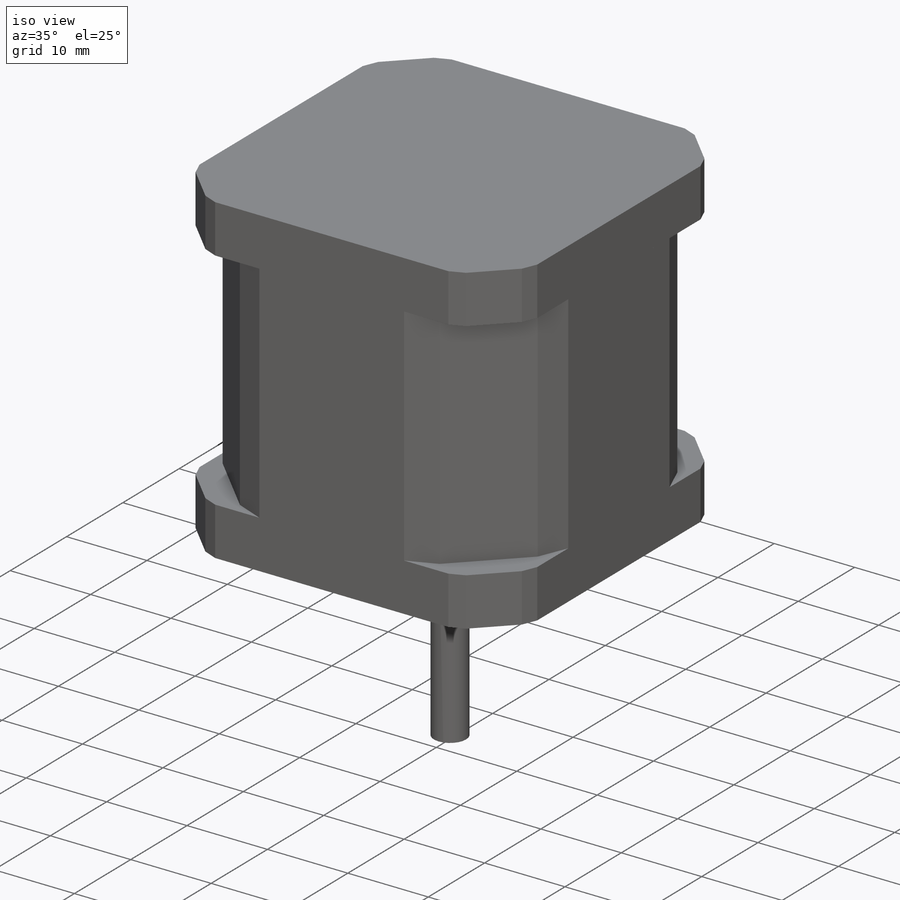
[diagram: iso view]
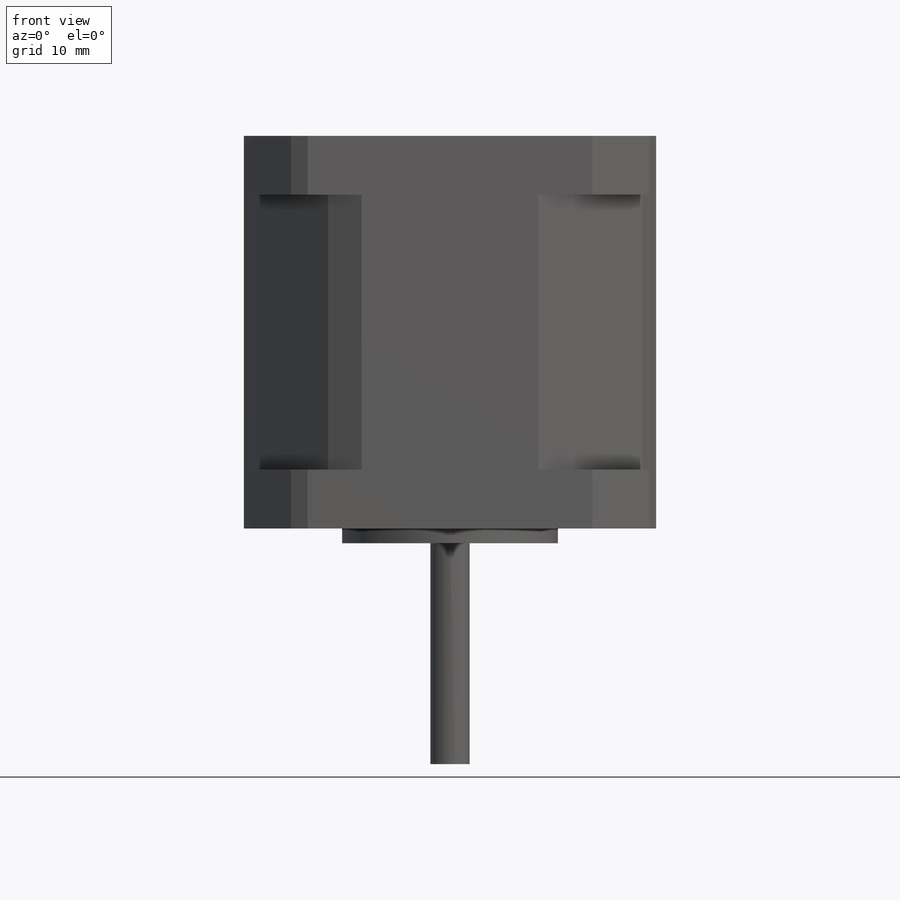
[diagram: front view]
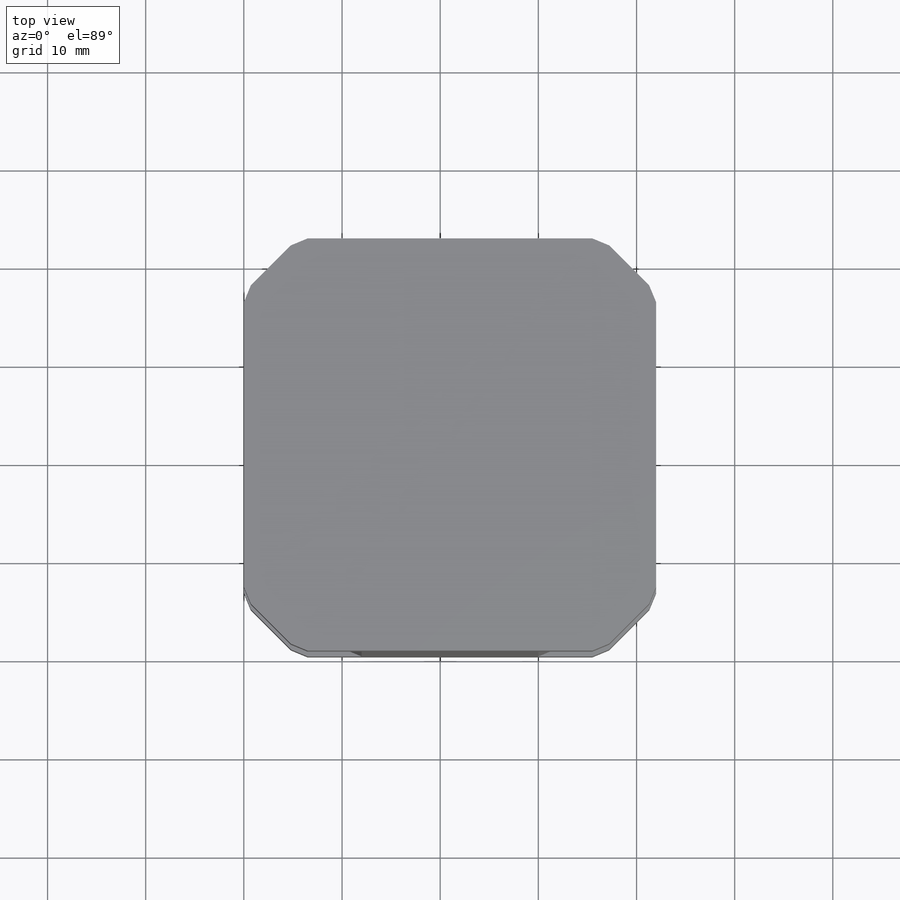
[diagram: top view]
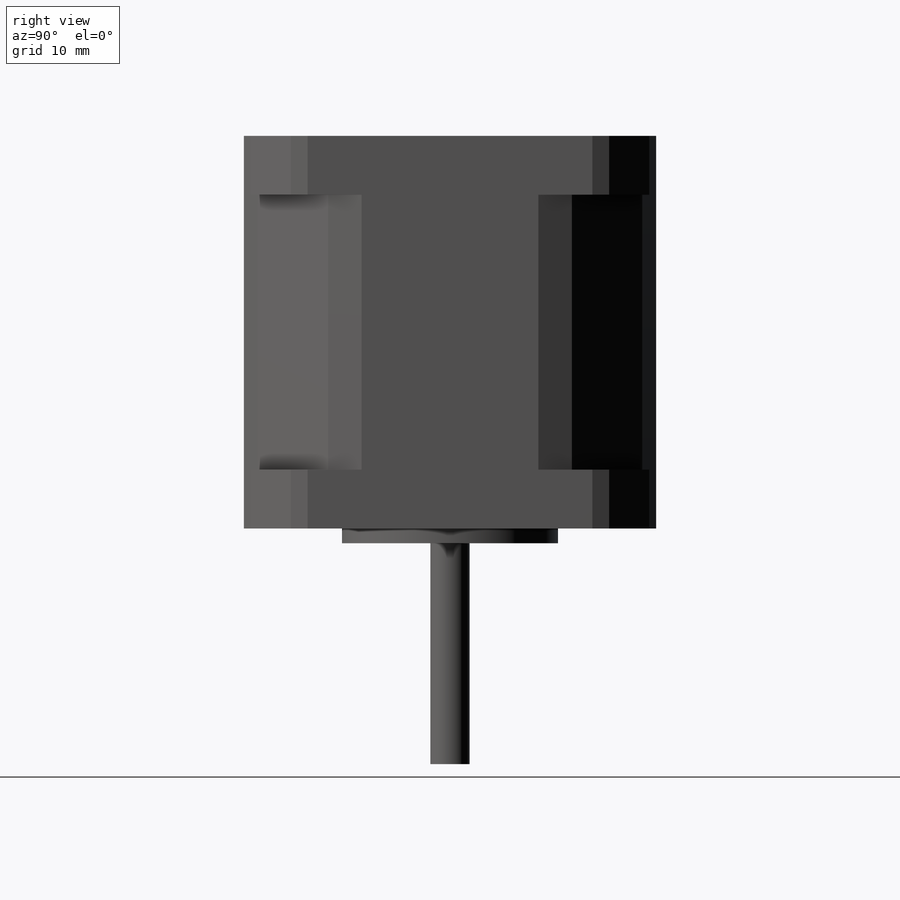
[diagram: right view]
SOLIDWORKS PART (.sldprt)
format: sldprt  version: not decoded by parser v0  size: 305,152 bytes
history: native  units: mm
features: material x6, sketch x6, chamfer x6, extrude x5, plane x1, cut_extrude x1 (+10 scaffold rows collapsed)
feature tree (35):
  scaffold x10  (default folders/planes/origin — collapsed)
  material  "材质 <未指定>"
  material  "上视基准面"
  material  "右视基准面"
  material  "基准面2"
  material  "基准面3"
  material  "基准面4"
  plane  "前视基准面"
  sketch  "草图1"
  extrude  "凸台-拉伸1"  Depth=6mm
  chamfer  "倒角1"  Distance=5.5mm Angle=45deg
  sketch  "草图2"
  extrude  "凸台-拉伸3"  Depth=28mm
  chamfer  "倒角3"  Distance=10mm Angle=45deg
  chamfer  "倒角4"  Distance=2mm
  sketch  "草图4"
  extrude  "凸台-拉伸6"  Depth=6mm
  chamfer  "倒角5"  Distance=5.5mm Angle=45deg
  chamfer  "倒角6"  Distance=1mm
  chamfer  "倒角7"  Distance=1mm
  sketch  "草图5"  dims[D1=~3.500092mm]
  cut_extrude  "切除-拉伸1"  Depth=5mm
  sketch  "草图6"  dims[D1=~10.664979mm]
  extrude  "凸台-拉伸7"  Depth=1.5mm
  sketch  "草图7"  dims[D1=~2.530838mm]
  extrude  "凸台-拉伸8"  Depth=22.5mm
decode coverage: 15 of 18 modeling features carry decoded parameters
note: ~ marks probable driven/reference dimensions
note: suppression state not decoded; provenance and decode notes live in map.json
